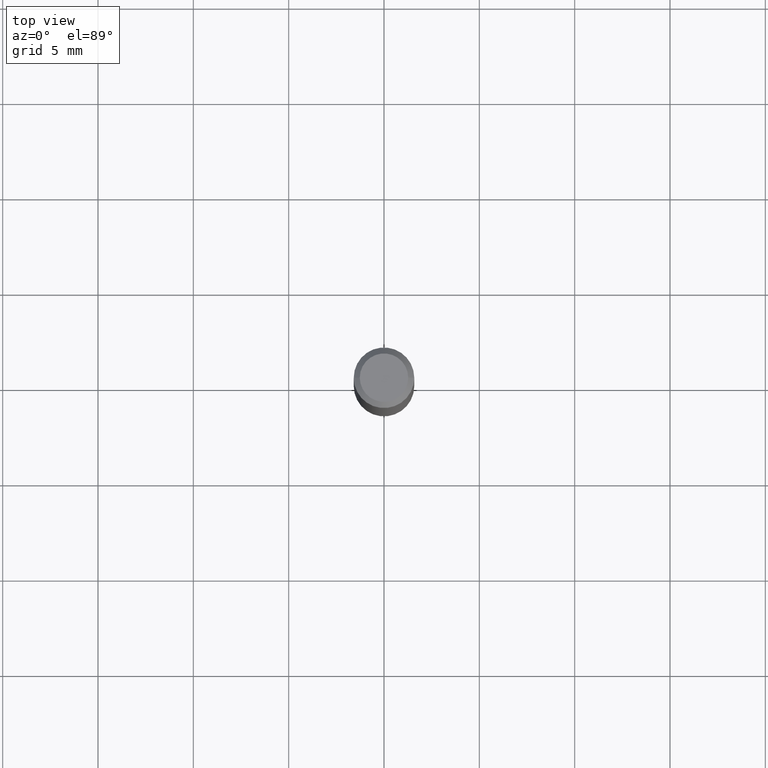
[diagram: clean part render]
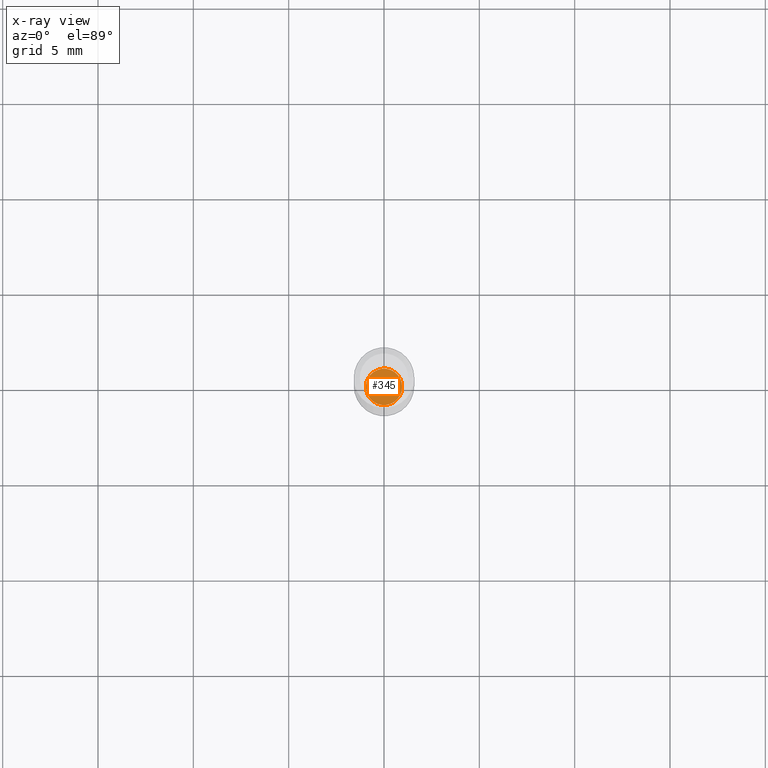
[diagram: x-ray — body ghosted, one internal face saturated and labeled with its STEP entity id]
A machine part, top view, then the same camera in x-ray: the body is ghosted and one INTERNAL B-rep face — a face not visible from any outside direction — is saturated and labeled: STEP entity #345.
In plain terms, the highlighted planar face has unit normal (-0, 0, 1).
Its self-contained STEP definition (entity closure, byte-faithful):
#10 = EDGE_LOOP ( 'NONE', ( #368, #85 ) ) ;
#12 = DIRECTION ( 'NONE',  ( 1.000000000000000000, -6.982962677686265922E-15, 4.876176775795935793E-29 ) ) ;
#36 = AXIS2_PLACEMENT_3D ( 'NONE', #304, #452, #485 ) ;
#85 = ORIENTED_EDGE ( 'NONE', *, *, #237, .F. ) ;
#94 = VERTEX_POINT ( 'NONE', #273 ) ;
#152 = AXIS2_PLACEMENT_3D ( 'NONE', #261, #214, #12 ) ;
#194 = CIRCLE ( 'NONE', #36, 0.03749999999999999861 ) ;
#202 = FACE_OUTER_BOUND ( 'NONE', #10, .T. ) ;
#208 = CARTESIAN_POINT ( 'NONE',  ( 0.03749999999999999861, -4.102490573140695103E-15, -1.100000000000000089 ) ) ;
#214 = DIRECTION ( 'NONE',  ( -2.438088387897960049E-29, 3.491481338843145188E-15, 1.000000000000000000 ) ) ;
#237 = EDGE_CURVE ( 'NONE', #94, #475, #194, .T. ) ;
#261 = CARTESIAN_POINT ( 'NONE',  ( 2.690015686803650369E-29, -3.840629472727460101E-15, -1.100000000000000089 ) ) ;
#273 = CARTESIAN_POINT ( 'NONE',  ( -0.03749999999999999861, -3.571526719643311488E-15, -1.100000000000000089 ) ) ;
#288 = DIRECTION ( 'NONE',  ( 1.000000000000000000, -6.982962677686268288E-15, 0.000000000000000000 ) ) ;
#293 = PLANE ( 'NONE',  #152 ) ;
#304 = CARTESIAN_POINT ( 'NONE',  ( 2.690015686803650369E-29, -3.840629472727460101E-15, -1.100000000000000089 ) ) ;
#313 = CIRCLE ( 'NONE', #465, 0.03749999999999999861 ) ;
#319 = DIRECTION ( 'NONE',  ( -2.445468806185136597E-29, 3.491481338843145583E-15, 1.000000000000000000 ) ) ;
#345 = ADVANCED_FACE ( 'NONE', ( #202 ), #293, .F. ) ;
#361 = CARTESIAN_POINT ( 'NONE',  ( 2.690015686803650369E-29, -3.840629472727460101E-15, -1.100000000000000089 ) ) ;
#368 = ORIENTED_EDGE ( 'NONE', *, *, #447, .F. ) ;
#447 = EDGE_CURVE ( 'NONE', #475, #94, #313, .T. ) ;
#452 = DIRECTION ( 'NONE',  ( -2.445468806185136597E-29, 3.491481338843145583E-15, 1.000000000000000000 ) ) ;
#465 = AXIS2_PLACEMENT_3D ( 'NONE', #361, #319, #288 ) ;
#475 = VERTEX_POINT ( 'NONE', #208 ) ;
#485 = DIRECTION ( 'NONE',  ( 1.000000000000000000, -6.982962677686268288E-15, 0.000000000000000000 ) ) ;